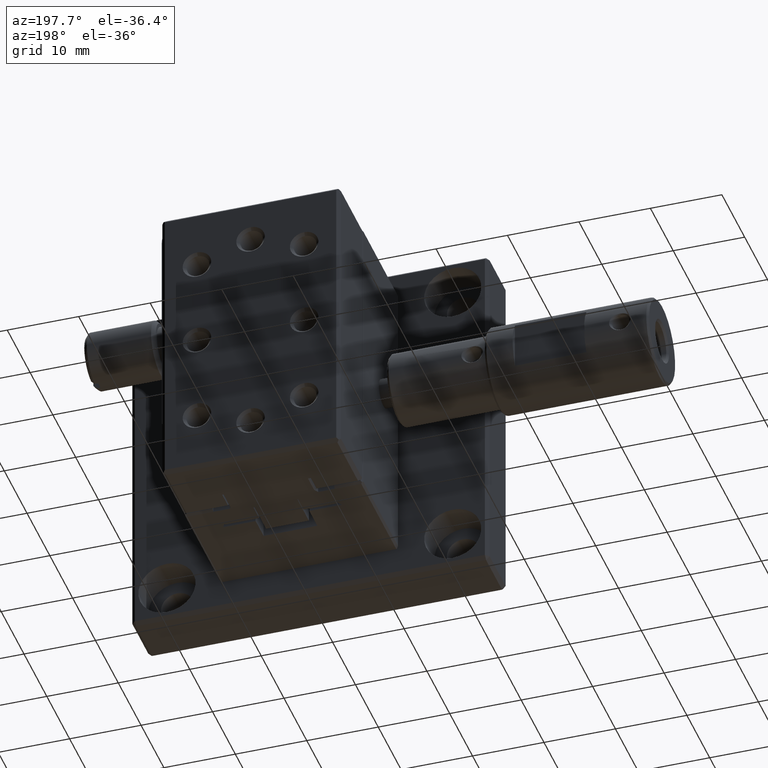
[diagram: clean part render]
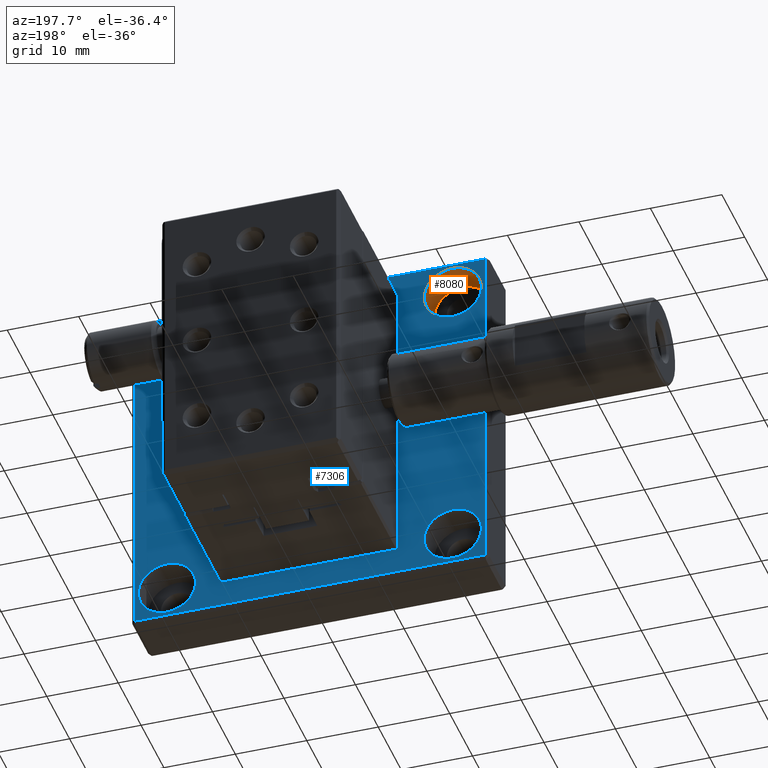
[diagram: same view with the hole feature highlighted: cylindrical wall and planar end face, labeled with their STEP entity ids]
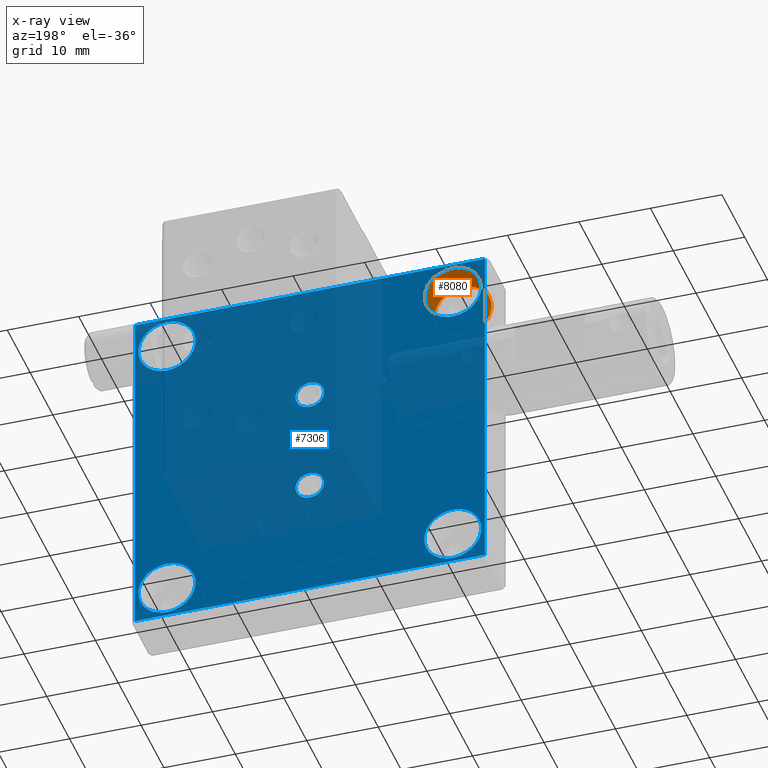
[diagram: x-ray of the same camera — body ghosted, the hole faces saturated]
A machine part, auxiliary view. The highlighted faces form one hole feature of diameter 8 mm: the cylindrical wall (entity #8080, orange) and its adjacent planar end face (entity #7306, blue) — they share a circular edge in the B-rep.
The next image is the same camera in x-ray (body ghosted, the hole faces saturated) — the bore reads through the body.
Wall:
#147 = EDGE_LOOP ( 'NONE', ( #4392 ) ) ;
#500 = FACE_OUTER_BOUND ( 'NONE', #147, .T. ) ;
#652 = CIRCLE ( 'NONE', #3078, 4.000000000000000000 ) ;
#1176 = CIRCLE ( 'NONE', #7220, 4.000000000000000000 ) ;
#1296 = EDGE_CURVE ( 'NONE', #8251, #8251, #652, .T. ) ;
#1755 = ORIENTED_EDGE ( 'NONE', *, *, #6148, .F. ) ;
#1887 = CYLINDRICAL_SURFACE ( 'NONE', #2950, 4.000000000000000000 ) ;
#1969 = CARTESIAN_POINT ( 'NONE',  ( -20.00000000000000000, -4.500000000000000888, 24.00000000000000000 ) ) ;
#2535 = CARTESIAN_POINT ( 'NONE',  ( -20.00000000000000000, 0.000000000000000000, 20.00000000000000000 ) ) ;
#2950 = AXIS2_PLACEMENT_3D ( 'NONE', #3816, #5623, #6383 ) ;
#3065 = FACE_OUTER_BOUND ( 'NONE', #4921, .T. ) ;
#3078 = AXIS2_PLACEMENT_3D ( 'NONE', #2535, #6917, #8232 ) ;
#3372 = DIRECTION ( 'NONE',  ( 0.000000000000000000, 1.000000000000000000, 0.000000000000000000 ) ) ;
#3816 = CARTESIAN_POINT ( 'NONE',  ( -20.00000000000000000, -4.500000000000000888, 20.00000000000000000 ) ) ;
#4392 = ORIENTED_EDGE ( 'NONE', *, *, #1296, .F. ) ;
#4474 = CARTESIAN_POINT ( 'NONE',  ( -20.00000000000000000, 0.000000000000000000, 24.00000000000000000 ) ) ;
#4497 = DIRECTION ( 'NONE',  ( 0.000000000000000000, 0.000000000000000000, 1.000000000000000000 ) ) ;
#4921 = EDGE_LOOP ( 'NONE', ( #1755 ) ) ;
#5623 = DIRECTION ( 'NONE',  ( 0.000000000000000000, 1.000000000000000000, 0.000000000000000000 ) ) ;
#6148 = EDGE_CURVE ( 'NONE', #7754, #7754, #1176, .T. ) ;
#6383 = DIRECTION ( 'NONE',  ( 0.000000000000000000, 0.000000000000000000, 1.000000000000000000 ) ) ;
#6526 = CARTESIAN_POINT ( 'NONE',  ( -20.00000000000000000, -4.500000000000000888, 20.00000000000000000 ) ) ;
#6917 = DIRECTION ( 'NONE',  ( -0.000000000000000000, -1.000000000000000000, -0.000000000000000000 ) ) ;
#7220 = AXIS2_PLACEMENT_3D ( 'NONE', #6526, #3372, #4497 ) ;
#7754 = VERTEX_POINT ( 'NONE', #1969 ) ;
#8080 = ADVANCED_FACE ( 'NONE', ( #500, #3065 ), #1887, .F. ) ;
#8232 = DIRECTION ( 'NONE',  ( 0.000000000000000000, 0.000000000000000000, 1.000000000000000000 ) ) ;
#8251 = VERTEX_POINT ( 'NONE', #4474 ) ;
End face:
#282 = EDGE_LOOP ( 'NONE', ( #3819 ) ) ;
#476 = EDGE_LOOP ( 'NONE', ( #7819 ) ) ;
#507 = CIRCLE ( 'NONE', #7085, 4.000000000000000000 ) ;
#565 = CIRCLE ( 'NONE', #7571, 2.000000000016370461 ) ;
#652 = CIRCLE ( 'NONE', #3078, 4.000000000000000000 ) ;
#667 = EDGE_CURVE ( 'NONE', #5076, #5076, #1061, .T. ) ;
#691 = AXIS2_PLACEMENT_3D ( 'NONE', #4314, #6218, #6378 ) ;
#776 = DIRECTION ( 'NONE',  ( 0.000000000000000000, 0.000000000000000000, 1.000000000000000000 ) ) ;
#911 = DIRECTION ( 'NONE',  ( 1.000000000000000000, -0.000000000000000000, 0.000000000000000000 ) ) ;
#1061 = CIRCLE ( 'NONE', #7678, 4.000000000000000000 ) ;
#1104 = CARTESIAN_POINT ( 'NONE',  ( -20.00000000000000000, 0.000000000000000000, -20.00000000000000000 ) ) ;
#1115 = DIRECTION ( 'NONE',  ( 0.000000000000000000, 0.000000000000000000, 1.000000000000000000 ) ) ;
#1296 = EDGE_CURVE ( 'NONE', #8251, #8251, #652, .T. ) ;
#1340 = FACE_BOUND ( 'NONE', #476, .T. ) ;
#1345 = LINE ( 'NONE', #5217, #1854 ) ;
#1423 = EDGE_CURVE ( 'NONE', #6897, #7642, #3406, .T. ) ;
#1439 = CARTESIAN_POINT ( 'NONE',  ( 0.000000000000000000, -1.864480791979872265E-11, -5.499999999983629095 ) ) ;
#1463 = CARTESIAN_POINT ( 'NONE',  ( 0.000000000000000000, 0.000000000000000000, 0.000000000000000000 ) ) ;
#1509 = ORIENTED_EDGE ( 'NONE', *, *, #4328, .F. ) ;
#1598 = CARTESIAN_POINT ( 'NONE',  ( -24.50000000000000000, 0.000000000000000000, 0.000000000000000000 ) ) ;
#1628 = VECTOR ( 'NONE', #5196, 1000.000000000000000 ) ;
#1854 = VECTOR ( 'NONE', #7246, 1000.000000000000000 ) ;
#2100 = FACE_OUTER_BOUND ( 'NONE', #2262, .T. ) ;
#2142 = FACE_BOUND ( 'NONE', #4204, .T. ) ;
#2262 = EDGE_LOOP ( 'NONE', ( #7249, #4299, #2675, #1509 ) ) ;
#2466 = DIRECTION ( 'NONE',  ( 0.000000000000000000, 0.000000000000000000, 1.000000000000000000 ) ) ;
#2535 = CARTESIAN_POINT ( 'NONE',  ( -20.00000000000000000, 0.000000000000000000, 20.00000000000000000 ) ) ;
#2675 = ORIENTED_EDGE ( 'NONE', *, *, #6223, .F. ) ;
#2827 = EDGE_CURVE ( 'NONE', #5903, #5903, #565, .T. ) ;
#2855 = CARTESIAN_POINT ( 'NONE',  ( -24.50000000000000000, 0.000000000000000000, 24.50000000000001066 ) ) ;
#2882 = CARTESIAN_POINT ( 'NONE',  ( 20.00000000000000000, 0.000000000000000000, 20.00000000000000000 ) ) ;
#3008 = DIRECTION ( 'NONE',  ( -0.000000000000000000, -1.000000000000000000, -0.000000000000000000 ) ) ;
#3078 = AXIS2_PLACEMENT_3D ( 'NONE', #2535, #6917, #8232 ) ;
#3090 = CARTESIAN_POINT ( 'NONE',  ( 0.000000000000000000, -7.548822678060673752E-11, 7.500000000000000000 ) ) ;
#3255 = EDGE_CURVE ( 'NONE', #3300, #3300, #4864, .T. ) ;
#3265 = ORIENTED_EDGE ( 'NONE', *, *, #667, .T. ) ;
#3300 = VERTEX_POINT ( 'NONE', #5860 ) ;
#3305 = CARTESIAN_POINT ( 'NONE',  ( 24.50000000000000000, 0.000000000000000000, 0.000000000000000000 ) ) ;
#3406 = LINE ( 'NONE', #5965, #5888 ) ;
#3632 = CARTESIAN_POINT ( 'NONE',  ( 20.00000000000000000, 0.000000000000000000, -16.00000000000000000 ) ) ;
#3717 = CARTESIAN_POINT ( 'NONE',  ( -20.00000000000000000, 0.000000000000000000, -16.00000000000000000 ) ) ;
#3740 = EDGE_LOOP ( 'NONE', ( #6284 ) ) ;
#3819 = ORIENTED_EDGE ( 'NONE', *, *, #4138, .T. ) ;
#3937 = CARTESIAN_POINT ( 'NONE',  ( 24.50000000000000000, 0.000000000000000000, -24.50000000000001066 ) ) ;
#3946 = VERTEX_POINT ( 'NONE', #3717 ) ;
#4138 = EDGE_CURVE ( 'NONE', #6664, #6664, #6739, .T. ) ;
#4204 = EDGE_LOOP ( 'NONE', ( #4448 ) ) ;
#4299 = ORIENTED_EDGE ( 'NONE', *, *, #6361, .F. ) ;
#4314 = CARTESIAN_POINT ( 'NONE',  ( 20.00000000000000000, 0.000000000000000000, -20.00000000000000000 ) ) ;
#4324 = AXIS2_PLACEMENT_3D ( 'NONE', #3090, #5028, #2466 ) ;
#4328 = EDGE_CURVE ( 'NONE', #7642, #6784, #6463, .T. ) ;
#4448 = ORIENTED_EDGE ( 'NONE', *, *, #6132, .T. ) ;
#4474 = CARTESIAN_POINT ( 'NONE',  ( -20.00000000000000000, 0.000000000000000000, 24.00000000000000000 ) ) ;
#4623 = FACE_BOUND ( 'NONE', #282, .T. ) ;
#4711 = DIRECTION ( 'NONE',  ( 0.000000000000000000, 1.000000000000000000, 0.000000000000000000 ) ) ;
#4864 = CIRCLE ( 'NONE', #4324, 2.000000000002728928 ) ;
#4979 = DIRECTION ( 'NONE',  ( 0.000000000000000000, 0.000000000000000000, 1.000000000000000000 ) ) ;
#5012 = ORIENTED_EDGE ( 'NONE', *, *, #3255, .T. ) ;
#5028 = DIRECTION ( 'NONE',  ( 0.000000000000000000, -1.000000000000000000, -0.000000000000000000 ) ) ;
#5076 = VERTEX_POINT ( 'NONE', #5701 ) ;
#5196 = DIRECTION ( 'NONE',  ( 0.000000000000000000, 0.000000000000000000, 1.000000000000000000 ) ) ;
#5210 = EDGE_LOOP ( 'NONE', ( #3265 ) ) ;
#5217 = CARTESIAN_POINT ( 'NONE',  ( 0.000000000000000000, 0.000000000000000000, 24.50000000000000000 ) ) ;
#5280 = CARTESIAN_POINT ( 'NONE',  ( 0.000000000000000000, -1.864480791979872265E-11, -7.500000000000000000 ) ) ;
#5548 = VERTEX_POINT ( 'NONE', #2855 ) ;
#5701 = CARTESIAN_POINT ( 'NONE',  ( 20.00000000000000000, 0.000000000000000000, 24.00000000000000000 ) ) ;
#5860 = CARTESIAN_POINT ( 'NONE',  ( 0.000000000000000000, -7.548822678060673752E-11, 9.500000000002728484 ) ) ;
#5888 = VECTOR ( 'NONE', #911, 1000.000000000000000 ) ;
#5903 = VERTEX_POINT ( 'NONE', #1439 ) ;
#5965 = CARTESIAN_POINT ( 'NONE',  ( 0.000000000000000000, 0.000000000000000000, -24.50000000000000000 ) ) ;
#6132 = EDGE_CURVE ( 'NONE', #3946, #3946, #507, .T. ) ;
#6144 = DIRECTION ( 'NONE',  ( -0.000000000000000000, -0.000000000000000000, -1.000000000000000000 ) ) ;
#6218 = DIRECTION ( 'NONE',  ( -0.000000000000000000, -1.000000000000000000, -0.000000000000000000 ) ) ;
#6223 = EDGE_CURVE ( 'NONE', #6784, #5548, #1345, .T. ) ;
#6279 = VECTOR ( 'NONE', #6144, 1000.000000000000000 ) ;
#6284 = ORIENTED_EDGE ( 'NONE', *, *, #1296, .T. ) ;
#6336 = EDGE_LOOP ( 'NONE', ( #5012 ) ) ;
#6361 = EDGE_CURVE ( 'NONE', #5548, #6897, #7379, .T. ) ;
#6378 = DIRECTION ( 'NONE',  ( 0.000000000000000000, 0.000000000000000000, 1.000000000000000000 ) ) ;
#6437 = PLANE ( 'NONE',  #6517 ) ;
#6463 = LINE ( 'NONE', #3305, #1628 ) ;
#6503 = DIRECTION ( 'NONE',  ( 0.000000000000000000, -1.000000000000000000, -0.000000000000000000 ) ) ;
#6517 = AXIS2_PLACEMENT_3D ( 'NONE', #1463, #4711, #6611 ) ;
#6611 = DIRECTION ( 'NONE',  ( 0.000000000000000000, -0.000000000000000000, 1.000000000000000000 ) ) ;
#6664 = VERTEX_POINT ( 'NONE', #3632 ) ;
#6739 = CIRCLE ( 'NONE', #691, 4.000000000000000000 ) ;
#6784 = VERTEX_POINT ( 'NONE', #7371 ) ;
#6856 = CARTESIAN_POINT ( 'NONE',  ( -24.50000000000000355, 0.000000000000000000, -24.50000000000001066 ) ) ;
#6897 = VERTEX_POINT ( 'NONE', #6856 ) ;
#6917 = DIRECTION ( 'NONE',  ( -0.000000000000000000, -1.000000000000000000, -0.000000000000000000 ) ) ;
#7085 = AXIS2_PLACEMENT_3D ( 'NONE', #1104, #8190, #4979 ) ;
#7199 = FACE_BOUND ( 'NONE', #3740, .T. ) ;
#7246 = DIRECTION ( 'NONE',  ( -1.000000000000000000, -0.000000000000000000, 0.000000000000000000 ) ) ;
#7249 = ORIENTED_EDGE ( 'NONE', *, *, #1423, .F. ) ;
#7306 = ADVANCED_FACE ( 'NONE', ( #7923, #4623, #2142, #7199, #1340, #7755, #2100 ), #6437, .T. ) ;
#7371 = CARTESIAN_POINT ( 'NONE',  ( 24.50000000000001066, 0.000000000000000000, 24.50000000000000000 ) ) ;
#7379 = LINE ( 'NONE', #1598, #6279 ) ;
#7571 = AXIS2_PLACEMENT_3D ( 'NONE', #5280, #6503, #776 ) ;
#7642 = VERTEX_POINT ( 'NONE', #3937 ) ;
#7678 = AXIS2_PLACEMENT_3D ( 'NONE', #2882, #3008, #1115 ) ;
#7755 = FACE_BOUND ( 'NONE', #6336, .T. ) ;
#7819 = ORIENTED_EDGE ( 'NONE', *, *, #2827, .T. ) ;
#7923 = FACE_BOUND ( 'NONE', #5210, .T. ) ;
#8190 = DIRECTION ( 'NONE',  ( -0.000000000000000000, -1.000000000000000000, -0.000000000000000000 ) ) ;
#8232 = DIRECTION ( 'NONE',  ( 0.000000000000000000, 0.000000000000000000, 1.000000000000000000 ) ) ;
#8251 = VERTEX_POINT ( 'NONE', #4474 ) ;